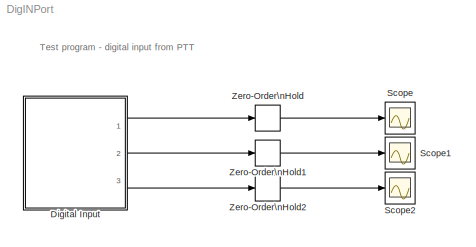
MODEL DigINPort
KIND model
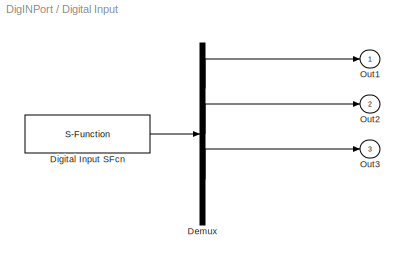
BLOCK [SubSystem] Digital Input
  Ports = [0, 3]
  RequestExecContextInheritance = off
  SID = 14
  ShowPortLabels = none
  Tag = mcTarget_digIn
BLOCK [Demux] Digital Input/Demux
  Outputs = 3
  Ports = [1, 3]
  SID = 14:15
BLOCK [S-Function] Digital Input/Digital Input SFcn
  EnableBusSupport = off
  FunctionName = digIn_sfcn_9S12
  Parameters = sampletime, port, pins
  Ports = [0, 1]
  SFcnIsStateOwnerBlock = off
  SFunctionDeploymentMode = off
  SID = 14:16
  Tag = mcTarget_digIn
BLOCK [Outport] Digital Input/Out1
  IconDisplay = Port number
  SID = 14:17
BLOCK [Outport] Digital Input/Out2
  IconDisplay = Port number
  Port = 2
  SID = 14:18
BLOCK [Outport] Digital Input/Out3
  IconDisplay = Port number
  Port = 3
  SID = 14:19
BLOCK [Scope] Scope
  Floating = off
  NumInputPorts = 1
  Ports = [1]
  SID = 2
  ScopeSpecificationString = C++SS(StrPVP('Location','[149, 483, 432, 619]'),StrPVP('Open','off'),MxPVP('AxesTitles',54,'struct(''axes1'',''%<SignalLabel>'')'),StrPVP('TimeRange','2'),StrPVP('YMin','-0.5'),StrPVP('YMax','1.5'),StrPVP('DataFormat','StructureWithTime'),StrPVP('LimitDataPoints','on'),StrPVP('Decimation','1'),StrPVP('BlockParamSampleInput','off'))
BLOCK [Scope] Scope1
  Floating = off
  NumInputPorts = 1
  Ports = [1]
  SID = 3
  ScopeSpecificationString = C++SS(StrPVP('Location','[442, 483, 726, 618]'),StrPVP('Open','off'),MxPVP('AxesTitles',54,'struct(''axes1'',''%<SignalLabel>'')'),StrPVP('TimeRange','2'),StrPVP('YMin','-0.5'),StrPVP('YMax','1.5'),StrPVP('SaveName','ScopeData1'),StrPVP('DataFormat','StructureWithTime'),StrPVP('LimitDataPoints','on'),StrPVP('Decimation','1'),StrPVP('BlockParamSampleInput','off'))
BLOCK [Scope] Scope2
  Floating = off
  NumInputPorts = 1
  Ports = [1]
  SID = 4
  ScopeSpecificationString = C++SS(StrPVP('Location','[737, 483, 1019, 617]'),StrPVP('Open','off'),MxPVP('AxesTitles',54,'struct(''axes1'',''%<SignalLabel>'')'),StrPVP('TimeRange','2'),StrPVP('YMin','-0.5'),StrPVP('YMax','1.5'),StrPVP('SaveName','ScopeData2'),StrPVP('DataFormat','StructureWithTime'),StrPVP('LimitDataPoints','on'),StrPVP('Decimation','1'),StrPVP('BlockParamSampleInput','off'))
BLOCK [ZeroOrderHold] Zero-Order\nHold
  SID = 5
  SampleTime = 0.1
BLOCK [ZeroOrderHold] Zero-Order\nHold1
  SID = 6
  SampleTime = 0.1
BLOCK [ZeroOrderHold] Zero-Order\nHold2
  SID = 7
  SampleTime = 0.1
ANNOTATION (root): Test program - digital input from PTT
LINE Digital Input/Demux:1 -> Digital Input/Out1:1
LINE Digital Input/Demux:2 -> Digital Input/Out2:1
LINE Digital Input/Demux:3 -> Digital Input/Out3:1
LINE Digital Input/Digital Input SFcn:1 -> Digital Input/Demux:1
LINE Digital Input:1 -> Zero-Order\nHold:1
LINE Digital Input:2 -> Zero-Order\nHold1:1
LINE Digital Input:3 -> Zero-Order\nHold2:1
LINE Zero-Order\nHold1:1 -> Scope1:1
LINE Zero-Order\nHold2:1 -> Scope2:1
LINE Zero-Order\nHold:1 -> Scope:1
